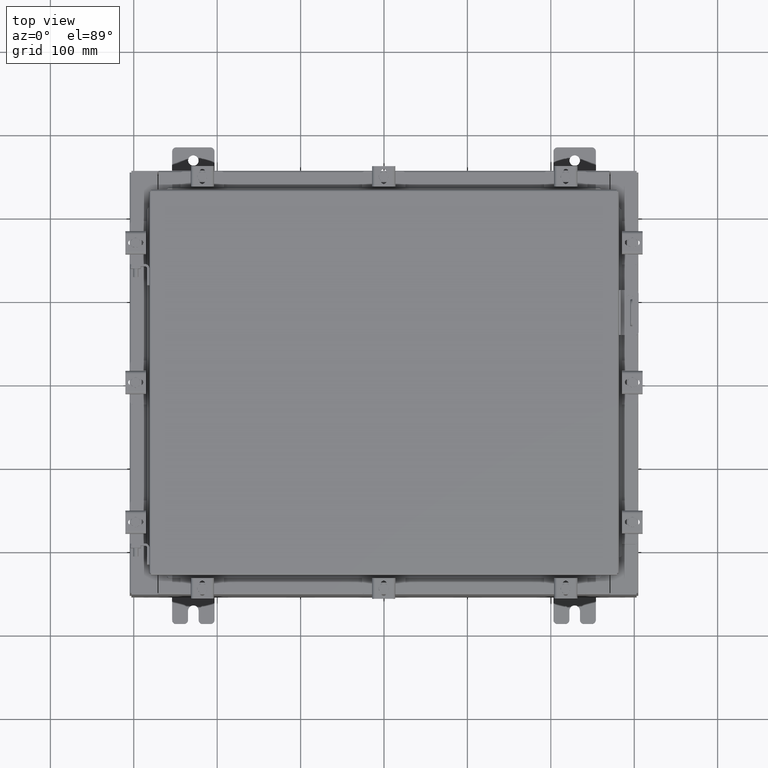
[diagram: clean part render]
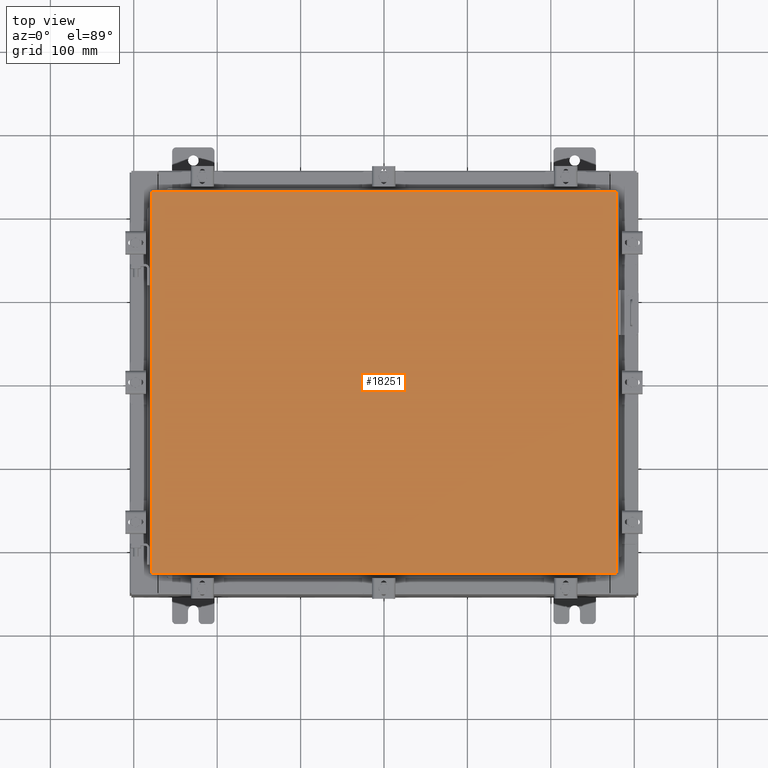
[diagram: same view with one face highlighted and labeled with its STEP entity id]
A machine part, top view. The second image highlights one B-rep face of the part: STEP entity #18251.
In plain terms, the highlighted planar face has unit normal (0, 0, -1).
Its self-contained STEP definition (entity closure, byte-faithful):
#188 = CARTESIAN_POINT ( 'NONE',  ( 10.99030000000000100, -9.006299999999997800, -2.048885995248197400E-016 ) ) ;
#964 = DIRECTION ( 'NONE',  ( 0.0000000000000000000, -1.000000000000000000, 0.0000000000000000000 ) ) ;
#1234 = VECTOR ( 'NONE', #11802, 39.37007874015748100 ) ;
#1307 = CARTESIAN_POINT ( 'NONE',  ( -10.99029999999999800, -9.006299999999997800, -2.048885995248197400E-016 ) ) ;
#1566 = CARTESIAN_POINT ( 'NONE',  ( 0.0000000000000000000, 0.0000000000000000000, 0.0000000000000000000 ) ) ;
#1612 = VECTOR ( 'NONE', #964, 39.37007874015748100 ) ;
#1787 = LINE ( 'NONE', #1307, #1234 ) ;
#3324 = DIRECTION ( 'NONE',  ( -1.000000000000000000, 0.0000000000000000000, -0.0000000000000000000 ) ) ;
#3705 = CARTESIAN_POINT ( 'NONE',  ( -10.99029999999999800, -9.006299999999997800, -2.048885995248197400E-016 ) ) ;
#5876 = EDGE_LOOP ( 'NONE', ( #16190, #20916, #7243, #17855 ) ) ;
#7243 = ORIENTED_EDGE ( 'NONE', *, *, #19966, .T. ) ;
#7921 = DIRECTION ( 'NONE',  ( -1.000000000000000000, -0.0000000000000000000, -0.0000000000000000000 ) ) ;
#7936 = EDGE_CURVE ( 'NONE', #12103, #19729, #1787, .T. ) ;
#8029 = VECTOR ( 'NONE', #11173, 39.37007874015748100 ) ;
#9234 = VECTOR ( 'NONE', #7921, 39.37007874015748100 ) ;
#9426 = CARTESIAN_POINT ( 'NONE',  ( 10.99030000000000100, -9.006299999999997800, -2.048885995248197400E-016 ) ) ;
#10303 = PLANE ( 'NONE',  #15878 ) ;
#11126 = CARTESIAN_POINT ( 'NONE',  ( 10.99030000000000100, 9.006300000000001300, -7.512581982576723400E-016 ) ) ;
#11173 = DIRECTION ( 'NONE',  ( 0.0000000000000000000, 1.000000000000000000, 0.0000000000000000000 ) ) ;
#11182 = VERTEX_POINT ( 'NONE', #11126 ) ;
#11802 = DIRECTION ( 'NONE',  ( 1.000000000000000000, -0.0000000000000000000, -0.0000000000000000000 ) ) ;
#11816 = EDGE_CURVE ( 'NONE', #19579, #12103, #19561, .T. ) ;
#12103 = VERTEX_POINT ( 'NONE', #3705 ) ;
#13763 = DIRECTION ( 'NONE',  ( 0.0000000000000000000, 0.0000000000000000000, -1.000000000000000000 ) ) ;
#13860 = CARTESIAN_POINT ( 'NONE',  ( -10.99029999999999800, 9.006300000000001300, -2.048885995248197400E-016 ) ) ;
#14377 = LINE ( 'NONE', #16565, #9234 ) ;
#15878 = AXIS2_PLACEMENT_3D ( 'NONE', #1566, #13763, #3324 ) ;
#16190 = ORIENTED_EDGE ( 'NONE', *, *, #7936, .T. ) ;
#16565 = CARTESIAN_POINT ( 'NONE',  ( 10.99030000000000100, 9.006300000000001300, -7.512581982576723400E-016 ) ) ;
#17369 = EDGE_CURVE ( 'NONE', #19729, #11182, #18874, .T. ) ;
#17855 = ORIENTED_EDGE ( 'NONE', *, *, #11816, .T. ) ;
#18251 = ADVANCED_FACE ( 'NONE', ( #20453 ), #10303, .F. ) ;
#18874 = LINE ( 'NONE', #9426, #8029 ) ;
#19561 = LINE ( 'NONE', #21884, #1612 ) ;
#19579 = VERTEX_POINT ( 'NONE', #13860 ) ;
#19729 = VERTEX_POINT ( 'NONE', #188 ) ;
#19966 = EDGE_CURVE ( 'NONE', #11182, #19579, #14377, .T. ) ;
#20453 = FACE_OUTER_BOUND ( 'NONE', #5876, .T. ) ;
#20916 = ORIENTED_EDGE ( 'NONE', *, *, #17369, .T. ) ;
#21884 = CARTESIAN_POINT ( 'NONE',  ( -10.99029999999999800, 9.006300000000001300, -2.048885995248197400E-016 ) ) ;